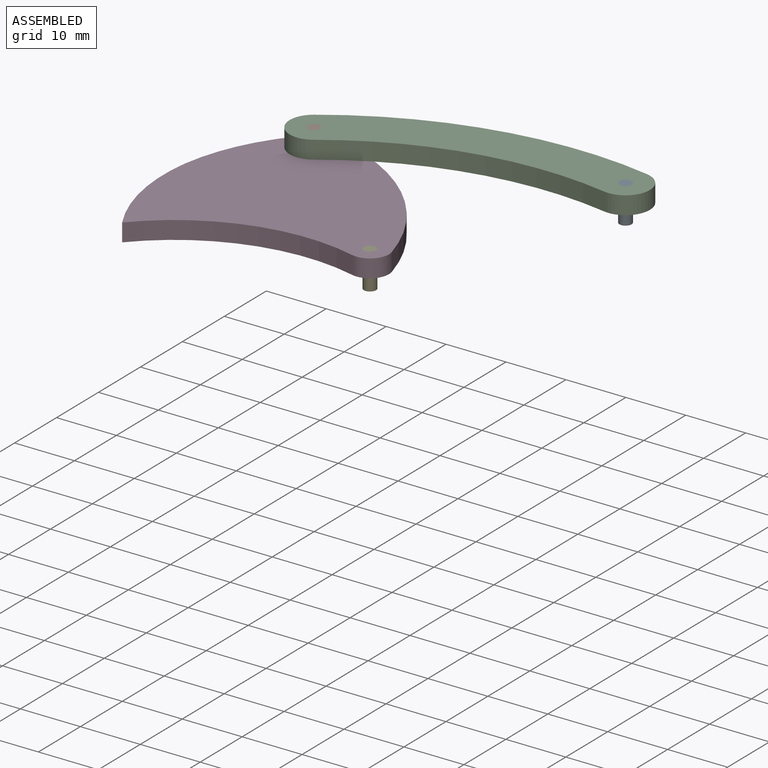
[diagram: assembled view]
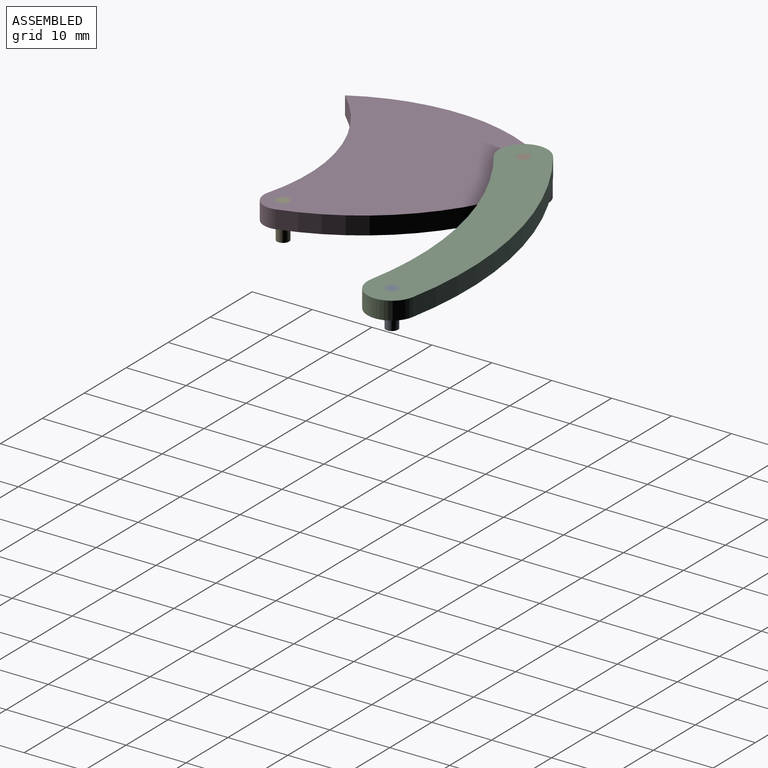
[diagram: assembled view, second angle]
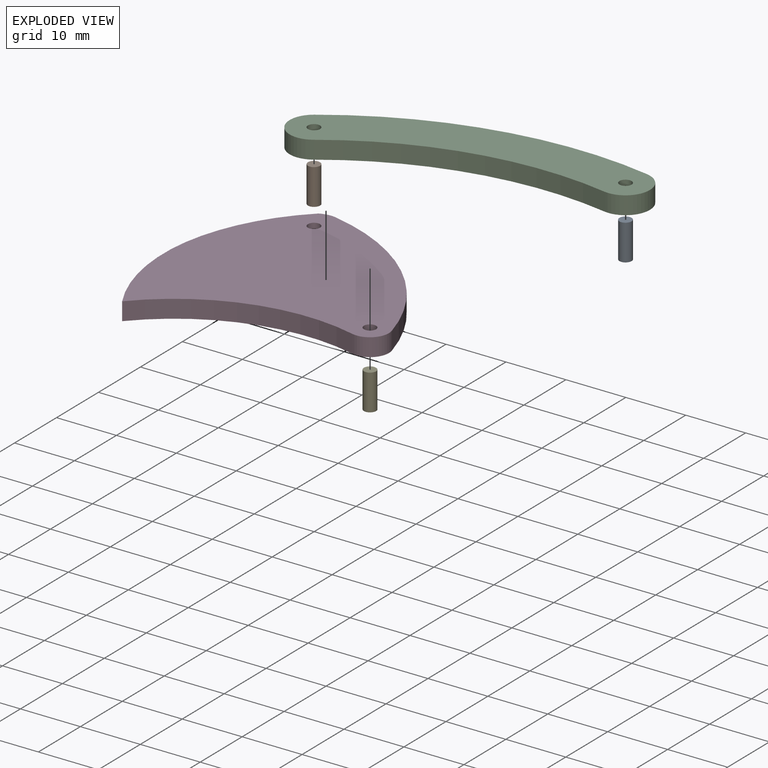
[diagram: exploded view]
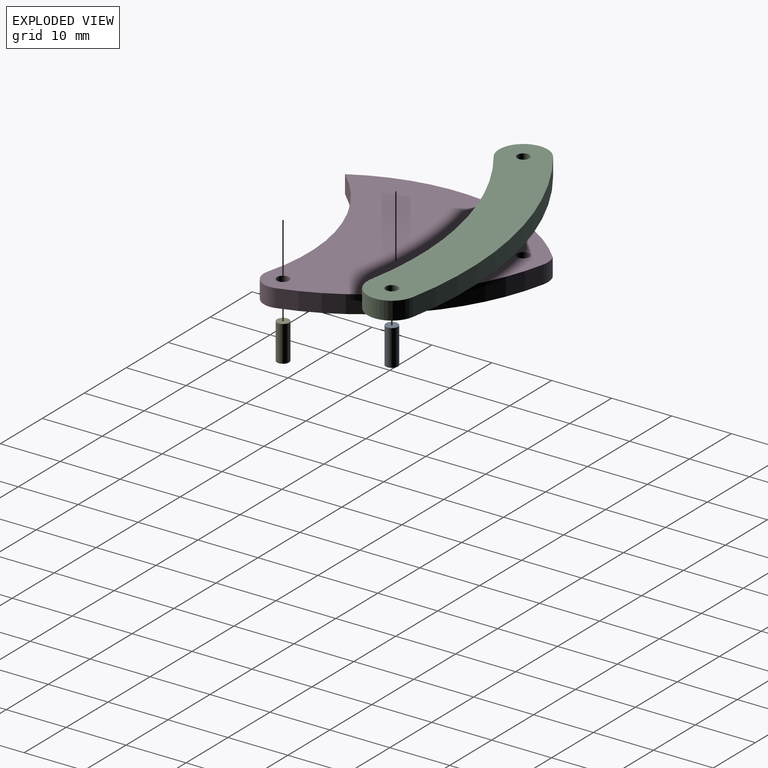
[diagram: exploded view, second angle]
ASSEMBLY  parts=5 mates=9
PART A: 3 faces, bbox 2x2x6 mm
  f0: cylinder r=1.02mm len=5.99mm, axis (0,0,-1), area 38.3mm2, adj f1,f2
  f1: plane 2.03x2.03mm, normal (0,0,1), area 3.2mm2, adj f0
  f2: plane 2.03x2.03mm, normal (0,0,-1), area 3.2mm2, adj f0
PART B: same geometry as A
PART C: 8 faces, bbox 50.7x26.1x3 mm
  f0: cylinder r=4.06mm len=8.13mm, axis (0,0,-1), area 38.3mm2, adj f1,f3,f6,f7
  f1: cylinder r=55.37mm len=39.68mm, axis (0,0,-1), area 132.6mm2, adj f0,f2,f6,f7
  f2: cylinder r=4.06mm len=6.98mm, axis (0,0,-1), area 38.3mm2, adj f1,f3,f6,f7
  f3: cylinder r=63.5mm len=45.5mm, axis (0,0,-1), area 152mm2, adj f0,f2,f6,f7
  f4: cylinder r=1.02mm len=3mm, axis (0,0,-1), area 19.1mm2, adj f6,f7
  f5: cylinder r=1.02mm len=3mm, axis (0,0,-1), area 19.1mm2, adj f6,f7
  f6: plane 50.72x26.11mm, normal (0,0,1), area 431.3mm2, adj f0,f1,f2,f3,f4,f5
  f7: plane 50.72x26.11mm, normal (0,0,-1), area 431.3mm2, adj f0,f1,f2,f3,f4,f5
PART D: 10 faces, bbox 40x39.1x3 mm
  f0: cylinder r=4.06mm len=3mm, axis (0,0,-1), area 8.2mm2, adj f1,f6,f8,f9
  f1: cylinder r=31.75mm len=18.08mm, axis (0,0,-1), area 62.5mm2, adj f0,f2,f8,f9
  f2: cylinder r=31.75mm len=20.59mm, axis (0,0,-1), area 64mm2, adj f1,f3,f8,f9
  f3: cylinder r=31.75mm len=31.79mm, axis (0,0,-1), area 104.6mm2, adj f2,f4,f8,f9
  f4: cylinder r=3.17mm len=4.04mm, axis (0,0,-1), area 20.1mm2, adj f3,f6,f8,f9
  f5: cylinder r=1.02mm len=3mm, axis (0,0,-1), area 19.1mm2, adj f8,f9
  f6: cylinder r=36.32mm len=27.32mm, axis (0,0,-1), area 118mm2, adj f0,f4,f8,f9
  f7: cylinder r=1.02mm len=3mm, axis (0,0,-1), area 19.1mm2, adj f8,f9
  f8: plane 40.04x39.08mm, normal (0,0,1), area 943.7mm2, adj f0,f1,f2,f3,f4,f5,f6,f7
  f9: plane 40.04x39.08mm, normal (0,0,-1), area 943.7mm2, adj f0,f1,f2,f3,f4,f5,f6,f7
PART E: same geometry as A
PLACE A t=(-7.4,-33.04,27.8)mm
PLACE B rot(axis=(0,0,1),35deg) t=(-39.31,-59.01,27.8)mm
PLACE C rot(axis=(0,0,1),35deg) t=(13.94,-78.5,27.8)mm
PLACE D t=(-27.65,-64.83,24.81)mm
PLACE E t=(-27.48,-65.27,24.81)mm
MATE planar E.f0 <-> D.f4  axis (0,0,1) through (4.96,-52.34,27.8)mm
MATE cylindrical B.f0 <-> C.f0  axis (0,0,1) through (-20.15,-29.81,30.8)mm
MATE cylindrical D.f0 <-> C.f4  axis (0,0,-1) through (-20.15,-29.81,26.3)mm
MATE cylindrical A.f0 <-> C.f2  axis (0,0,1) through (25.04,-20.11,30.8)mm
MATE cylindrical B.f0 <-> D.f0  axis (0,0,-1) through (-20.15,-29.81,24.81)mm
MATE planar B.f0 <-> C.f0  axis (0,0,1) through (-20.15,-29.81,30.8)mm
MATE planar A.f0 <-> C.f2  axis (0,0,1) through (25.04,-20.11,30.8)mm
MATE cylindrical E.f0 <-> D.f4  axis (0,0,-1) through (4.96,-52.34,27.8)mm
MATE planar C.f7 <-> D.f8  axis (0,0,-1) through (1.86,-22.24,27.8)mm
